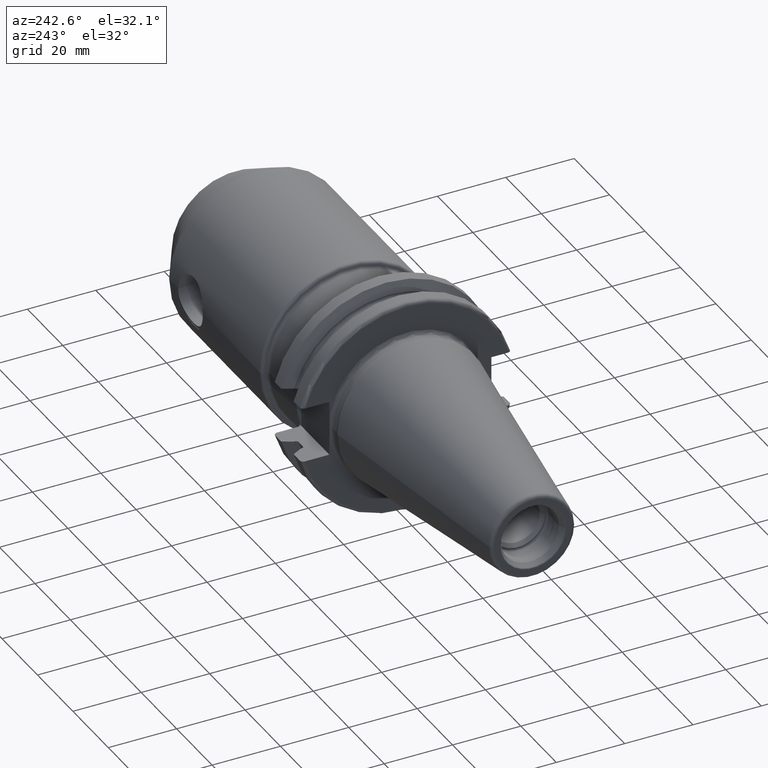
[diagram: clean part render]
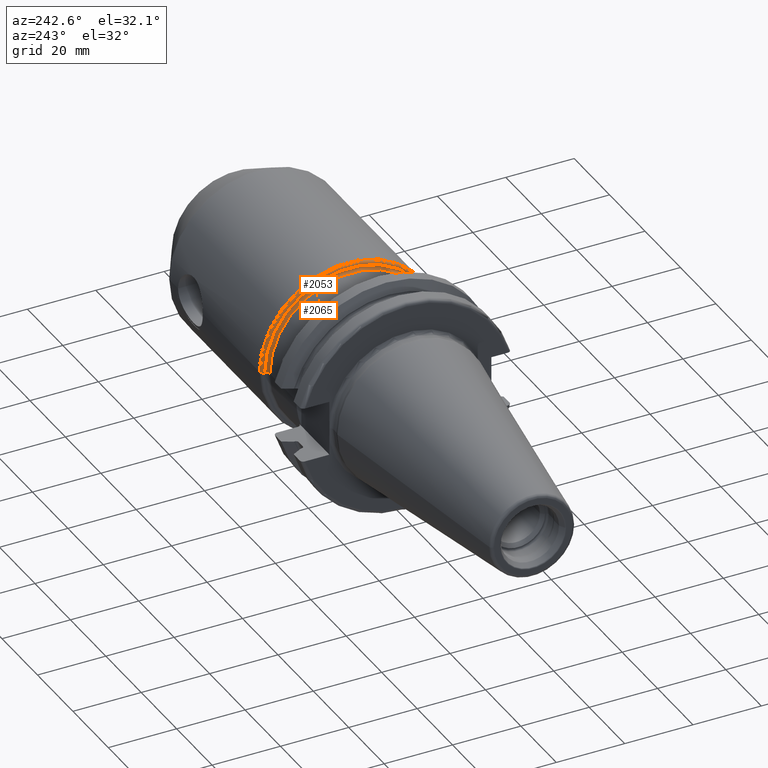
[diagram: same view with one multi-face feature highlighted, each face labeled with its STEP entity id]
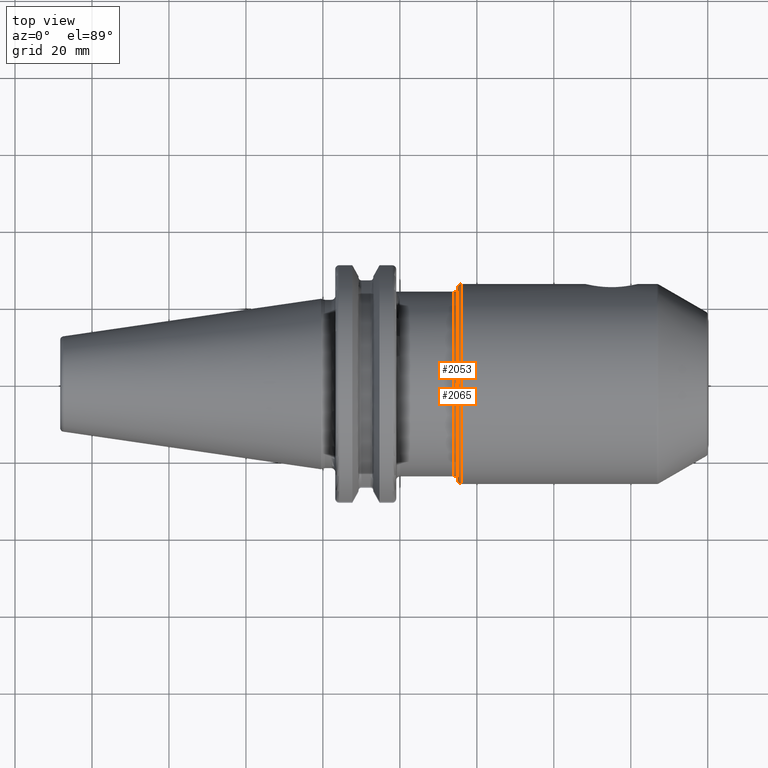
[diagram: same view with one multi-face feature highlighted, each face labeled with its STEP entity id]
A machine part, auxiliary view. The highlighted faces form ONE feature: a constant-radius fillet chain: 2 tangent blend faces with common blend radius 1 mm. The faces share edges in the B-rep.
A second angle (top view) of the same feature is appended — it is thin or edge-on in the first view.
Their STEP definitions:
[1] entity #2065 (Torus):
#153=CARTESIAN_POINT('',(3.405E1,0.E0,0.E0));
#154=DIRECTION('',(1.E0,0.E0,0.E0));
#155=DIRECTION('',(0.E0,1.E0,0.E0));
#156=AXIS2_PLACEMENT_3D('',#153,#154,#155);
#212=CARTESIAN_POINT('',(3.405E1,-2.5E1,7.942091428959E-12));
#213=DIRECTION('',(0.E0,-3.176833796026E-13,-1.E0));
#214=DIRECTION('',(0.E0,1.E0,-3.176833796026E-13));
#215=AXIS2_PLACEMENT_3D('',#212,#213,#214);
#227=CARTESIAN_POINT('',(3.505E1,0.E0,0.E0));
#228=DIRECTION('',(-1.E0,0.E0,0.E0));
#229=DIRECTION('',(0.E0,-1.E0,0.E0));
#230=AXIS2_PLACEMENT_3D('',#227,#228,#229);
#232=CARTESIAN_POINT('',(3.405E1,2.5E1,-7.945227809003E-12));
#233=DIRECTION('',(0.E0,3.178091470546E-13,1.E0));
#234=DIRECTION('',(0.E0,-1.E0,3.178091470546E-13));
#235=AXIS2_PLACEMENT_3D('',#232,#233,#234);
#1719=CARTESIAN_POINT('',(3.405E1,-2.4E1,0.E0));
#1720=CARTESIAN_POINT('',(3.405E1,2.4E1,0.E0));
#1721=VERTEX_POINT('',#1719);
#1722=VERTEX_POINT('',#1720);
#1725=CARTESIAN_POINT('',(3.505E1,2.5E1,0.E0));
#1726=CARTESIAN_POINT('',(3.505E1,-2.5E1,1.608973017692E-14));
#1727=VERTEX_POINT('',#1725);
#1728=VERTEX_POINT('',#1726);
#2054=CARTESIAN_POINT('',(3.405E1,0.E0,0.E0));
#2055=DIRECTION('',(1.E0,0.E0,0.E0));
#2056=DIRECTION('',(0.E0,9.999774477568E-1,-6.715949512969E-3));
#2057=AXIS2_PLACEMENT_3D('',#2054,#2055,#2056);
#2058=TOROIDAL_SURFACE('',#2057,2.5E1,1.E0);
#2059=ORIENTED_EDGE('',*,*,#2045,.F.);
#2060=ORIENTED_EDGE('',*,*,#2020,.F.);
#2061=ORIENTED_EDGE('',*,*,#1967,.F.);
#2062=ORIENTED_EDGE('',*,*,#2017,.T.);
#2063=EDGE_LOOP('',(#2059,#2060,#2061,#2062));
#2064=FACE_OUTER_BOUND('',#2063,.F.);
#2065=ADVANCED_FACE('',(#2064),#2058,.F.);
#157=CIRCLE('',#156,2.4E1);
#216=CIRCLE('',#215,1.E0);
#231=CIRCLE('',#230,2.5E1);
#236=CIRCLE('',#235,1.E0);
#1967=EDGE_CURVE('',#1722,#1721,#157,.T.);
#2017=EDGE_CURVE('',#1722,#1727,#236,.T.);
#2020=EDGE_CURVE('',#1721,#1728,#216,.T.);
#2045=EDGE_CURVE('',#1728,#1727,#231,.T.);
[2] entity #2053 (Torus):
#217=CARTESIAN_POINT('',(3.605E1,2.5E1,1.412758798836E-14));
#218=DIRECTION('',(0.E0,0.E0,-1.E0));
#219=DIRECTION('',(-1.E0,0.E0,0.E0));
#220=AXIS2_PLACEMENT_3D('',#217,#218,#219);
#222=CARTESIAN_POINT('',(3.605E1,-2.5E1,-1.312838726619E-14));
#223=DIRECTION('',(0.E0,0.E0,1.E0));
#224=DIRECTION('',(-1.E0,0.E0,0.E0));
#225=AXIS2_PLACEMENT_3D('',#222,#223,#224);
#227=CARTESIAN_POINT('',(3.505E1,0.E0,0.E0));
#228=DIRECTION('',(-1.E0,0.E0,0.E0));
#229=DIRECTION('',(0.E0,-1.E0,0.E0));
#230=AXIS2_PLACEMENT_3D('',#227,#228,#229);
#266=CARTESIAN_POINT('',(3.605E1,0.E0,0.E0));
#267=DIRECTION('',(-1.E0,0.E0,0.E0));
#268=DIRECTION('',(0.E0,-1.E0,0.E0));
#269=AXIS2_PLACEMENT_3D('',#266,#267,#268);
#1715=CARTESIAN_POINT('',(3.605E1,2.6E1,6.892725538006E-12));
#1716=VERTEX_POINT('',#1715);
#1725=CARTESIAN_POINT('',(3.505E1,2.5E1,0.E0));
#1726=CARTESIAN_POINT('',(3.505E1,-2.5E1,1.608973017692E-14));
#1727=VERTEX_POINT('',#1725);
#1728=VERTEX_POINT('',#1726);
#1729=CARTESIAN_POINT('',(3.605E1,-2.6E1,0.E0));
#1730=VERTEX_POINT('',#1729);
#2040=CARTESIAN_POINT('',(3.605E1,0.E0,0.E0));
#2041=DIRECTION('',(1.E0,0.E0,0.E0));
#2042=DIRECTION('',(0.E0,-9.999647085759E-1,-8.401285782876E-3));
#2043=AXIS2_PLACEMENT_3D('',#2040,#2041,#2042);
#2044=TOROIDAL_SURFACE('',#2043,2.5E1,1.E0);
#2046=ORIENTED_EDGE('',*,*,#2045,.T.);
#2047=ORIENTED_EDGE('',*,*,#2035,.T.);
#2049=ORIENTED_EDGE('',*,*,#2048,.F.);
#2050=ORIENTED_EDGE('',*,*,#2031,.F.);
#2051=EDGE_LOOP('',(#2046,#2047,#2049,#2050));
#2052=FACE_OUTER_BOUND('',#2051,.F.);
#2053=ADVANCED_FACE('',(#2052),#2044,.T.);
#221=CIRCLE('',#220,1.E0);
#226=CIRCLE('',#225,1.E0);
#231=CIRCLE('',#230,2.5E1);
#270=CIRCLE('',#269,2.6E1);
#2031=EDGE_CURVE('',#1728,#1730,#226,.T.);
#2035=EDGE_CURVE('',#1727,#1716,#221,.T.);
#2045=EDGE_CURVE('',#1728,#1727,#231,.T.);
#2048=EDGE_CURVE('',#1730,#1716,#270,.T.);